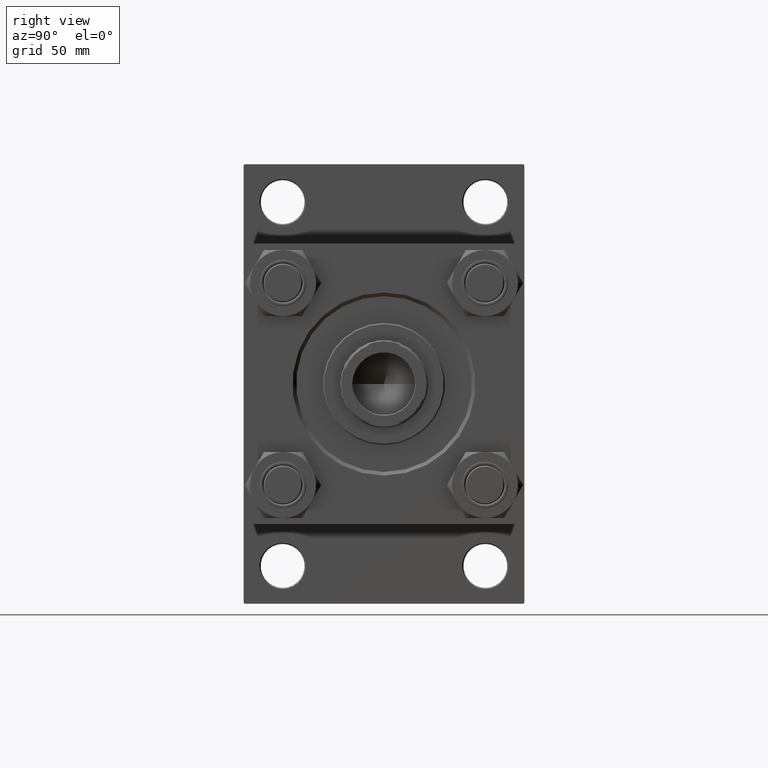
[diagram: clean part render]
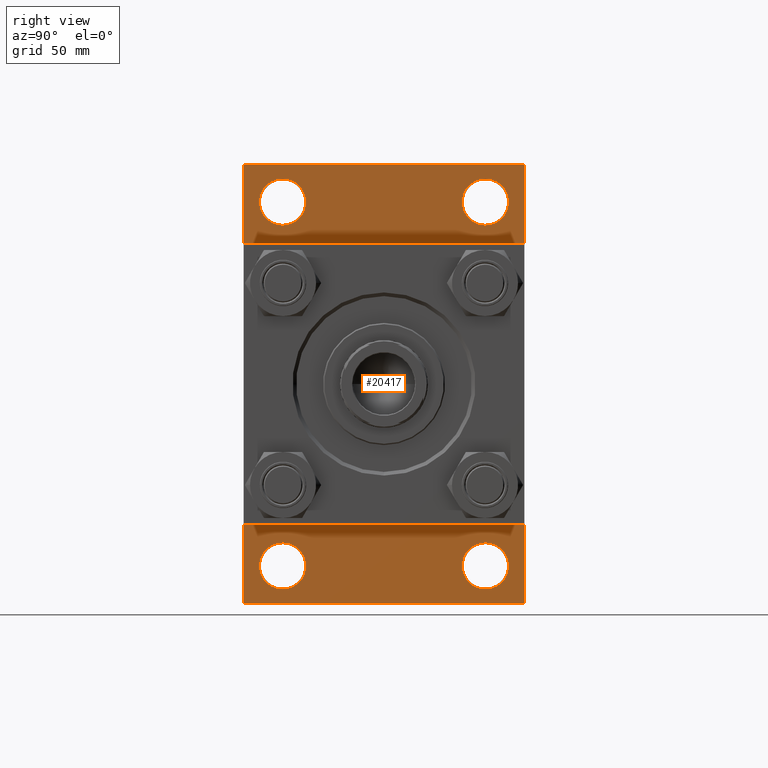
[diagram: same view with one face highlighted and labeled with its STEP entity id]
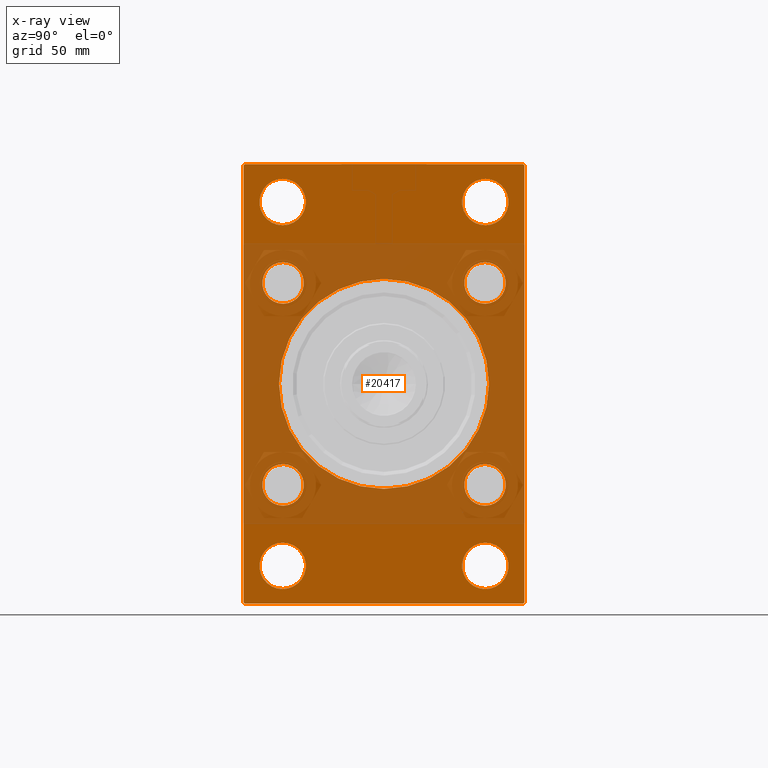
[diagram: x-ray of the same camera — body ghosted, the highlighted face saturated]
A machine part, right view. The second image highlights one B-rep face of the part: STEP entity #20417.
The next image is the same camera in x-ray: the body ghosted, the highlighted face saturated — about 51% of this face is hidden behind the body in this view.
In plain terms, the highlighted planar face has unit normal (-1, 0, 0).
Its self-contained STEP definition (entity closure, byte-faithful):
#83 = CIRCLE ( 'NONE', #36721, 9.500000000000008882 ) ;
#174 = ORIENTED_EDGE ( 'NONE', *, *, #3602, .T. ) ;
#183 = CARTESIAN_POINT ( 'NONE',  ( 44.00000000000000000, -57.00000000000001421, 89.99999999999998579 ) ) ;
#361 = AXIS2_PLACEMENT_3D ( 'NONE', #24158, #39740, #16233 ) ;
#723 = CARTESIAN_POINT ( 'NONE',  ( 44.00000000000000000, 57.50000000000000000, -90.00000000000000000 ) ) ;
#935 = CARTESIAN_POINT ( 'NONE',  ( 44.00000000000000000, 41.34999999999999432, 49.84999999999995879 ) ) ;
#1331 = EDGE_CURVE ( 'NONE', #15025, #9266, #10894, .T. ) ;
#1490 = DIRECTION ( 'NONE',  ( 0.000000000000000000, 0.000000000000000000, 1.000000000000000000 ) ) ;
#2005 = DIRECTION ( 'NONE',  ( -1.000000000000000000, 0.000000000000000000, -0.000000000000000000 ) ) ;
#2396 = ORIENTED_EDGE ( 'NONE', *, *, #35512, .F. ) ;
#2946 = CARTESIAN_POINT ( 'NONE',  ( 44.00000000000000000, 41.34999999999999432, -32.85000000000005116 ) ) ;
#2996 = CARTESIAN_POINT ( 'NONE',  ( 44.00000000000000000, -41.50000000000000000, 84.00000000000000000 ) ) ;
#3316 = ORIENTED_EDGE ( 'NONE', *, *, #7457, .F. ) ;
#3578 = CARTESIAN_POINT ( 'NONE',  ( 44.00000000000000000, -41.34999999999998721, -32.85000000000005826 ) ) ;
#3602 = EDGE_CURVE ( 'NONE', #20884, #4307, #17471, .T. ) ;
#3874 = CARTESIAN_POINT ( 'NONE',  ( 44.00000000000000000, -41.34999999999998721, -41.35000000000000853 ) ) ;
#4213 = VERTEX_POINT ( 'NONE', #38845 ) ;
#4223 = VECTOR ( 'NONE', #29468, 1000.000000000000000 ) ;
#4242 = VERTEX_POINT ( 'NONE', #7696 ) ;
#4307 = VERTEX_POINT ( 'NONE', #35768 ) ;
#4464 = LINE ( 'NONE', #7787, #29344 ) ;
#4678 = AXIS2_PLACEMENT_3D ( 'NONE', #44998, #45507, #38355 ) ;
#5278 = AXIS2_PLACEMENT_3D ( 'NONE', #24527, #36515, #24773 ) ;
#5313 = CARTESIAN_POINT ( 'NONE',  ( 44.00000000000000000, 0.000000000000000000, 0.000000000000000000 ) ) ;
#5639 = DIRECTION ( 'NONE',  ( -1.000000000000000000, 0.000000000000000000, -0.000000000000000000 ) ) ;
#6026 = CARTESIAN_POINT ( 'NONE',  ( 44.00000000000000000, 41.34999999999999432, 32.85000000000005116 ) ) ;
#6219 = ORIENTED_EDGE ( 'NONE', *, *, #16944, .T. ) ;
#6271 = ORIENTED_EDGE ( 'NONE', *, *, #16603, .T. ) ;
#6656 = ORIENTED_EDGE ( 'NONE', *, *, #23729, .T. ) ;
#6974 = EDGE_CURVE ( 'NONE', #22383, #9401, #29722, .T. ) ;
#7278 = DIRECTION ( 'NONE',  ( 0.000000000000000000, 0.7071067811865622277, -0.7071067811865328068 ) ) ;
#7288 = FACE_BOUND ( 'NONE', #42720, .T. ) ;
#7329 = CIRCLE ( 'NONE', #35860, 8.499999999999952038 ) ;
#7457 = EDGE_CURVE ( 'NONE', #34281, #9869, #10116, .T. ) ;
#7696 = CARTESIAN_POINT ( 'NONE',  ( 44.00000000000000000, -57.49999999999999289, 89.50000000000001421 ) ) ;
#7787 = CARTESIAN_POINT ( 'NONE',  ( 44.00000000000000000, 57.50000000000000000, 90.00000000000000000 ) ) ;
#8061 = ORIENTED_EDGE ( 'NONE', *, *, #28287, .T. ) ;
#8130 = CARTESIAN_POINT ( 'NONE',  ( 44.00000000000000000, -41.34999999999998721, 41.35000000000000853 ) ) ;
#8171 = CARTESIAN_POINT ( 'NONE',  ( 44.00000000000000000, -41.50000000000000000, -74.50000000000000000 ) ) ;
#8365 = LINE ( 'NONE', #723, #25428 ) ;
#8833 = EDGE_LOOP ( 'NONE', ( #174, #27465 ) ) ;
#8994 = CARTESIAN_POINT ( 'NONE',  ( 44.00000000000000000, 41.34999999999999432, -49.84999999999995879 ) ) ;
#9088 = VERTEX_POINT ( 'NONE', #935 ) ;
#9195 = DIRECTION ( 'NONE',  ( -1.000000000000000000, 0.000000000000000000, -0.000000000000000000 ) ) ;
#9266 = VERTEX_POINT ( 'NONE', #13947 ) ;
#9401 = VERTEX_POINT ( 'NONE', #2996 ) ;
#9721 = DIRECTION ( 'NONE',  ( 1.000000000000000000, -0.000000000000000000, 0.000000000000000000 ) ) ;
#9805 = ORIENTED_EDGE ( 'NONE', *, *, #49645, .T. ) ;
#9869 = VERTEX_POINT ( 'NONE', #37646 ) ;
#9897 = CARTESIAN_POINT ( 'NONE',  ( 44.00000000000000000, -41.34999999999998721, -41.35000000000000853 ) ) ;
#9928 = ORIENTED_EDGE ( 'NONE', *, *, #26296, .T. ) ;
#10000 = CIRCLE ( 'NONE', #48272, 8.499999999999952038 ) ;
#10116 = CIRCLE ( 'NONE', #361, 43.00000000000000000 ) ;
#10315 = CIRCLE ( 'NONE', #50332, 9.500000000000008882 ) ;
#10492 = VERTEX_POINT ( 'NONE', #38032 ) ;
#10715 = AXIS2_PLACEMENT_3D ( 'NONE', #5313, #44865, #40271 ) ;
#10894 = CIRCLE ( 'NONE', #49166, 8.499999999999952038 ) ;
#11354 = FACE_BOUND ( 'NONE', #38168, .T. ) ;
#11431 = VECTOR ( 'NONE', #19626, 1000.000000000000114 ) ;
#11860 = DIRECTION ( 'NONE',  ( 0.000000000000000000, -1.000000000000000000, -1.206764157201257291E-16 ) ) ;
#11875 = EDGE_CURVE ( 'NONE', #21255, #35773, #42254, .T. ) ;
#12930 = EDGE_CURVE ( 'NONE', #13888, #45366, #46163, .T. ) ;
#12935 = DIRECTION ( 'NONE',  ( -1.000000000000000000, 0.000000000000000000, -0.000000000000000000 ) ) ;
#13521 = ORIENTED_EDGE ( 'NONE', *, *, #30222, .T. ) ;
#13761 = VERTEX_POINT ( 'NONE', #40707 ) ;
#13888 = VERTEX_POINT ( 'NONE', #2946 ) ;
#13947 = CARTESIAN_POINT ( 'NONE',  ( 44.00000000000000000, -41.34999999999998721, -49.84999999999996589 ) ) ;
#13953 = EDGE_LOOP ( 'NONE', ( #9805, #31188 ) ) ;
#14176 = ORIENTED_EDGE ( 'NONE', *, *, #30739, .T. ) ;
#14195 = AXIS2_PLACEMENT_3D ( 'NONE', #8171, #23503, #39827 ) ;
#14232 = ORIENTED_EDGE ( 'NONE', *, *, #19171, .T. ) ;
#15025 = VERTEX_POINT ( 'NONE', #3578 ) ;
#15771 = ORIENTED_EDGE ( 'NONE', *, *, #25644, .F. ) ;
#15774 = CARTESIAN_POINT ( 'NONE',  ( 44.00000000000000000, 57.50000000000000000, -89.50000000000000000 ) ) ;
#15861 = DIRECTION ( 'NONE',  ( -1.000000000000000000, 0.000000000000000000, -0.000000000000000000 ) ) ;
#16233 = DIRECTION ( 'NONE',  ( 0.000000000000000000, 0.000000000000000000, 1.000000000000000000 ) ) ;
#16603 = EDGE_CURVE ( 'NONE', #24791, #38673, #4464, .T. ) ;
#16712 = LINE ( 'NONE', #17213, #23986 ) ;
#16788 = AXIS2_PLACEMENT_3D ( 'NONE', #32215, #9721, #37306 ) ;
#16850 = AXIS2_PLACEMENT_3D ( 'NONE', #46589, #23621, #43029 ) ;
#16944 = EDGE_CURVE ( 'NONE', #45366, #13888, #7329, .T. ) ;
#17213 = CARTESIAN_POINT ( 'NONE',  ( 44.00000000000000000, 57.50000000000000000, 90.00000000000000000 ) ) ;
#17386 = DIRECTION ( 'NONE',  ( -1.000000000000000000, 0.000000000000000000, -0.000000000000000000 ) ) ;
#17471 = CIRCLE ( 'NONE', #14195, 9.500000000000008882 ) ;
#17788 = ORIENTED_EDGE ( 'NONE', *, *, #18541, .T. ) ;
#18289 = VERTEX_POINT ( 'NONE', #48723 ) ;
#18541 = EDGE_CURVE ( 'NONE', #13761, #18999, #83, .T. ) ;
#18725 = CARTESIAN_POINT ( 'NONE',  ( 44.00000000000000000, 57.00000000000000000, -90.00000000000000000 ) ) ;
#18750 = CARTESIAN_POINT ( 'NONE',  ( 44.00000000000000000, -56.99999999999998579, -90.00000000000002842 ) ) ;
#18759 = FACE_BOUND ( 'NONE', #13953, .T. ) ;
#18999 = VERTEX_POINT ( 'NONE', #47795 ) ;
#19012 = FACE_BOUND ( 'NONE', #43036, .T. ) ;
#19171 = EDGE_CURVE ( 'NONE', #18289, #4213, #22879, .T. ) ;
#19333 = CARTESIAN_POINT ( 'NONE',  ( 44.00000000000000000, -41.50000000000000000, 64.99999999999998579 ) ) ;
#19465 = DIRECTION ( 'NONE',  ( 0.000000000000000000, 0.000000000000000000, 1.000000000000000000 ) ) ;
#19626 = DIRECTION ( 'NONE',  ( -0.000000000000000000, 0.7071067811865474617, 0.7071067811865474617 ) ) ;
#19664 = AXIS2_PLACEMENT_3D ( 'NONE', #29929, #17386, #22245 ) ;
#19958 = CARTESIAN_POINT ( 'NONE',  ( 44.00000000000000000, 41.34999999999999432, -41.35000000000000142 ) ) ;
#20417 = ADVANCED_FACE ( 'NONE', ( #18759, #7288, #30526, #19012, #34603, #26936, #46329, #11354, #24699, #48411 ), #36447, .F. ) ;
#20549 = EDGE_LOOP ( 'NONE', ( #6219, #47866 ) ) ;
#20884 = VERTEX_POINT ( 'NONE', #30700 ) ;
#21123 = ORIENTED_EDGE ( 'NONE', *, *, #35793, .T. ) ;
#21203 = EDGE_CURVE ( 'NONE', #46381, #34405, #43362, .T. ) ;
#21255 = VERTEX_POINT ( 'NONE', #39540 ) ;
#21444 = CARTESIAN_POINT ( 'NONE',  ( 44.00000000000000000, 41.50000000000000711, 74.50000000000000000 ) ) ;
#21641 = ORIENTED_EDGE ( 'NONE', *, *, #6974, .T. ) ;
#22122 = CIRCLE ( 'NONE', #19664, 9.500000000000008882 ) ;
#22217 = CARTESIAN_POINT ( 'NONE',  ( 44.00000000000000000, -41.50000000000000000, 74.50000000000000000 ) ) ;
#22245 = DIRECTION ( 'NONE',  ( 0.000000000000000000, 0.000000000000000000, 1.000000000000000000 ) ) ;
#22383 = VERTEX_POINT ( 'NONE', #19333 ) ;
#22729 = DIRECTION ( 'NONE',  ( 0.000000000000000000, 0.000000000000000000, 1.000000000000000000 ) ) ;
#22879 = CIRCLE ( 'NONE', #42464, 8.499999999999952038 ) ;
#23114 = AXIS2_PLACEMENT_3D ( 'NONE', #45203, #37560, #26574 ) ;
#23503 = DIRECTION ( 'NONE',  ( -1.000000000000000000, 0.000000000000000000, -0.000000000000000000 ) ) ;
#23510 = DIRECTION ( 'NONE',  ( 0.000000000000000000, 0.000000000000000000, 1.000000000000000000 ) ) ;
#23621 = DIRECTION ( 'NONE',  ( -1.000000000000000000, 0.000000000000000000, -0.000000000000000000 ) ) ;
#23705 = DIRECTION ( 'NONE',  ( -1.000000000000000000, 0.000000000000000000, -0.000000000000000000 ) ) ;
#23729 = EDGE_CURVE ( 'NONE', #4242, #21255, #50269, .T. ) ;
#23771 = DIRECTION ( 'NONE',  ( -1.000000000000000000, 0.000000000000000000, -0.000000000000000000 ) ) ;
#23986 = VECTOR ( 'NONE', #32300, 1000.000000000000000 ) ;
#24078 = EDGE_LOOP ( 'NONE', ( #8061, #44605 ) ) ;
#24158 = CARTESIAN_POINT ( 'NONE',  ( 44.00000000000000000, -2.602085213965210642E-15, 0.000000000000000000 ) ) ;
#24253 = EDGE_CURVE ( 'NONE', #4307, #20884, #22122, .T. ) ;
#24322 = ORIENTED_EDGE ( 'NONE', *, *, #34675, .T. ) ;
#24527 = CARTESIAN_POINT ( 'NONE',  ( 44.00000000000000000, 41.34999999999999432, 41.35000000000000142 ) ) ;
#24692 = CARTESIAN_POINT ( 'NONE',  ( 44.00000000000000000, 41.50000000000000711, -74.50000000000000000 ) ) ;
#24699 = FACE_BOUND ( 'NONE', #24795, .T. ) ;
#24773 = DIRECTION ( 'NONE',  ( 0.000000000000000000, 0.000000000000000000, 1.000000000000000000 ) ) ;
#24791 = VERTEX_POINT ( 'NONE', #47900 ) ;
#24795 = EDGE_LOOP ( 'NONE', ( #3316, #43359 ) ) ;
#25428 = VECTOR ( 'NONE', #32360, 1000.000000000000000 ) ;
#25440 = DIRECTION ( 'NONE',  ( 0.000000000000000000, 0.000000000000000000, 1.000000000000000000 ) ) ;
#25633 = CIRCLE ( 'NONE', #32155, 8.499999999999952038 ) ;
#25644 = EDGE_CURVE ( 'NONE', #46381, #35773, #8365, .T. ) ;
#25713 = AXIS2_PLACEMENT_3D ( 'NONE', #36673, #12935, #25440 ) ;
#26134 = CARTESIAN_POINT ( 'NONE',  ( 44.00000000000000000, -57.49999999999999289, 89.50000000000001421 ) ) ;
#26296 = EDGE_CURVE ( 'NONE', #38673, #4242, #33300, .T. ) ;
#26434 = AXIS2_PLACEMENT_3D ( 'NONE', #22217, #30393, #22729 ) ;
#26574 = DIRECTION ( 'NONE',  ( 0.000000000000000000, 0.000000000000000000, 1.000000000000000000 ) ) ;
#26696 = CIRCLE ( 'NONE', #4678, 9.500000000000008882 ) ;
#26936 = FACE_BOUND ( 'NONE', #20549, .T. ) ;
#27016 = CARTESIAN_POINT ( 'NONE',  ( 44.00000000000000000, 41.50000000000000711, 64.99999999999998579 ) ) ;
#27465 = ORIENTED_EDGE ( 'NONE', *, *, #24253, .T. ) ;
#28287 = EDGE_CURVE ( 'NONE', #9266, #15025, #10000, .T. ) ;
#28619 = CARTESIAN_POINT ( 'NONE',  ( 44.00000000000000000, -41.34999999999998721, 41.35000000000000853 ) ) ;
#28959 = LINE ( 'NONE', #44522, #49996 ) ;
#29344 = VECTOR ( 'NONE', #11860, 1000.000000000000000 ) ;
#29468 = DIRECTION ( 'NONE',  ( -0.000000000000000000, -0.7071067811865524577, -0.7071067811865426878 ) ) ;
#29722 = CIRCLE ( 'NONE', #26434, 9.500000000000008882 ) ;
#29929 = CARTESIAN_POINT ( 'NONE',  ( 44.00000000000000000, -41.50000000000000000, -74.50000000000000000 ) ) ;
#30222 = EDGE_CURVE ( 'NONE', #18999, #13761, #37823, .T. ) ;
#30393 = DIRECTION ( 'NONE',  ( -1.000000000000000000, 0.000000000000000000, -0.000000000000000000 ) ) ;
#30526 = FACE_BOUND ( 'NONE', #8833, .T. ) ;
#30700 = CARTESIAN_POINT ( 'NONE',  ( 44.00000000000000000, -41.50000000000000000, -84.00000000000000000 ) ) ;
#30739 = EDGE_CURVE ( 'NONE', #31772, #24791, #28959, .T. ) ;
#31126 = ORIENTED_EDGE ( 'NONE', *, *, #21203, .T. ) ;
#31173 = DIRECTION ( 'NONE',  ( -1.000000000000000000, 0.000000000000000000, -0.000000000000000000 ) ) ;
#31188 = ORIENTED_EDGE ( 'NONE', *, *, #47652, .T. ) ;
#31772 = VERTEX_POINT ( 'NONE', #38066 ) ;
#31860 = DIRECTION ( 'NONE',  ( -1.000000000000000000, 0.000000000000000000, -0.000000000000000000 ) ) ;
#32155 = AXIS2_PLACEMENT_3D ( 'NONE', #28619, #9195, #43936 ) ;
#32215 = CARTESIAN_POINT ( 'NONE',  ( 44.00000000000000000, -2.602085213965210642E-15, 0.000000000000000000 ) ) ;
#32300 = DIRECTION ( 'NONE',  ( 0.000000000000000000, 0.000000000000000000, -1.000000000000000000 ) ) ;
#32360 = DIRECTION ( 'NONE',  ( 0.000000000000000000, -1.000000000000000000, -2.413528314402514583E-16 ) ) ;
#32569 = ORIENTED_EDGE ( 'NONE', *, *, #11875, .T. ) ;
#33103 = CIRCLE ( 'NONE', #16788, 43.00000000000000000 ) ;
#33300 = LINE ( 'NONE', #26134, #4223 ) ;
#33898 = CIRCLE ( 'NONE', #25713, 8.499999999999952038 ) ;
#34281 = VERTEX_POINT ( 'NONE', #36242 ) ;
#34405 = VERTEX_POINT ( 'NONE', #48714 ) ;
#34603 = FACE_BOUND ( 'NONE', #24078, .T. ) ;
#34675 = EDGE_CURVE ( 'NONE', #9088, #40968, #33898, .T. ) ;
#35512 = EDGE_CURVE ( 'NONE', #31772, #34405, #16712, .T. ) ;
#35768 = CARTESIAN_POINT ( 'NONE',  ( 44.00000000000000000, -41.50000000000000000, -64.99999999999998579 ) ) ;
#35773 = VERTEX_POINT ( 'NONE', #39103 ) ;
#35793 = EDGE_CURVE ( 'NONE', #9401, #22383, #40314, .T. ) ;
#35860 = AXIS2_PLACEMENT_3D ( 'NONE', #19958, #15861, #19465 ) ;
#35972 = EDGE_CURVE ( 'NONE', #4213, #18289, #25633, .T. ) ;
#36063 = EDGE_CURVE ( 'NONE', #40968, #9088, #43678, .T. ) ;
#36079 = ORIENTED_EDGE ( 'NONE', *, *, #36063, .T. ) ;
#36242 = CARTESIAN_POINT ( 'NONE',  ( 44.00000000000000000, -2.602085213965210642E-15, 43.00000000000000000 ) ) ;
#36447 = PLANE ( 'NONE',  #10715 ) ;
#36515 = DIRECTION ( 'NONE',  ( -1.000000000000000000, 0.000000000000000000, -0.000000000000000000 ) ) ;
#36673 = CARTESIAN_POINT ( 'NONE',  ( 44.00000000000000000, 41.34999999999999432, 41.35000000000000142 ) ) ;
#36721 = AXIS2_PLACEMENT_3D ( 'NONE', #24692, #31860, #1490 ) ;
#36806 = ORIENTED_EDGE ( 'NONE', *, *, #35972, .T. ) ;
#37306 = DIRECTION ( 'NONE',  ( 0.000000000000000000, 0.000000000000000000, 1.000000000000000000 ) ) ;
#37560 = DIRECTION ( 'NONE',  ( -1.000000000000000000, 0.000000000000000000, -0.000000000000000000 ) ) ;
#37646 = CARTESIAN_POINT ( 'NONE',  ( 44.00000000000000000, 2.663896022368408223E-15, -43.00000000000000000 ) ) ;
#37823 = CIRCLE ( 'NONE', #23114, 9.500000000000008882 ) ;
#38032 = CARTESIAN_POINT ( 'NONE',  ( 44.00000000000000000, 41.50000000000000711, 84.00000000000000000 ) ) ;
#38066 = CARTESIAN_POINT ( 'NONE',  ( 44.00000000000000000, 57.50000000000000000, 89.49999999999997158 ) ) ;
#38168 = EDGE_LOOP ( 'NONE', ( #36079, #24322 ) ) ;
#38355 = DIRECTION ( 'NONE',  ( 0.000000000000000000, 0.000000000000000000, 1.000000000000000000 ) ) ;
#38402 = VECTOR ( 'NONE', #42153, 1000.000000000000000 ) ;
#38673 = VERTEX_POINT ( 'NONE', #183 ) ;
#38845 = CARTESIAN_POINT ( 'NONE',  ( 44.00000000000000000, -41.34999999999998721, 49.84999999999996589 ) ) ;
#39055 = EDGE_LOOP ( 'NONE', ( #15771, #31126, #2396, #14176, #6271, #9928, #6656, #32569 ) ) ;
#39103 = CARTESIAN_POINT ( 'NONE',  ( 44.00000000000000000, -56.99999999999998579, -90.00000000000002842 ) ) ;
#39282 = DIRECTION ( 'NONE',  ( 0.000000000000000000, 0.000000000000000000, 1.000000000000000000 ) ) ;
#39540 = CARTESIAN_POINT ( 'NONE',  ( 44.00000000000000000, -57.49999999999999289, -89.49999999999998579 ) ) ;
#39600 = DIRECTION ( 'NONE',  ( 0.000000000000000000, 0.000000000000000000, 1.000000000000000000 ) ) ;
#39740 = DIRECTION ( 'NONE',  ( 1.000000000000000000, -0.000000000000000000, 0.000000000000000000 ) ) ;
#39827 = DIRECTION ( 'NONE',  ( 0.000000000000000000, 0.000000000000000000, 1.000000000000000000 ) ) ;
#39856 = DIRECTION ( 'NONE',  ( 0.000000000000000000, 0.000000000000000000, 1.000000000000000000 ) ) ;
#40271 = DIRECTION ( 'NONE',  ( -0.000000000000000000, 0.000000000000000000, 1.000000000000000000 ) ) ;
#40314 = CIRCLE ( 'NONE', #41129, 9.500000000000008882 ) ;
#40707 = CARTESIAN_POINT ( 'NONE',  ( 44.00000000000000000, 41.50000000000000711, -64.99999999999998579 ) ) ;
#40968 = VERTEX_POINT ( 'NONE', #6026 ) ;
#41129 = AXIS2_PLACEMENT_3D ( 'NONE', #43180, #23771, #39600 ) ;
#42153 = DIRECTION ( 'NONE',  ( 0.000000000000000000, 0.000000000000000000, -1.000000000000000000 ) ) ;
#42254 = LINE ( 'NONE', #18750, #46205 ) ;
#42464 = AXIS2_PLACEMENT_3D ( 'NONE', #8130, #23705, #39282 ) ;
#42571 = EDGE_LOOP ( 'NONE', ( #14232, #36806 ) ) ;
#42720 = EDGE_LOOP ( 'NONE', ( #21641, #21123 ) ) ;
#43029 = DIRECTION ( 'NONE',  ( 0.000000000000000000, 0.000000000000000000, 1.000000000000000000 ) ) ;
#43036 = EDGE_LOOP ( 'NONE', ( #13521, #17788 ) ) ;
#43180 = CARTESIAN_POINT ( 'NONE',  ( 44.00000000000000000, -41.50000000000000000, 74.50000000000000000 ) ) ;
#43359 = ORIENTED_EDGE ( 'NONE', *, *, #43563, .F. ) ;
#43362 = LINE ( 'NONE', #15774, #11431 ) ;
#43563 = EDGE_CURVE ( 'NONE', #9869, #34281, #33103, .T. ) ;
#43678 = CIRCLE ( 'NONE', #5278, 8.499999999999952038 ) ;
#43936 = DIRECTION ( 'NONE',  ( 0.000000000000000000, 0.000000000000000000, 1.000000000000000000 ) ) ;
#44372 = DIRECTION ( 'NONE',  ( 0.000000000000000000, 0.000000000000000000, 1.000000000000000000 ) ) ;
#44522 = CARTESIAN_POINT ( 'NONE',  ( 44.00000000000000000, 57.00000000000000000, 90.00000000000000000 ) ) ;
#44605 = ORIENTED_EDGE ( 'NONE', *, *, #1331, .T. ) ;
#44865 = DIRECTION ( 'NONE',  ( -1.000000000000000000, 0.000000000000000000, -0.000000000000000000 ) ) ;
#44998 = CARTESIAN_POINT ( 'NONE',  ( 44.00000000000000000, 41.50000000000000711, 74.50000000000000000 ) ) ;
#45011 = VERTEX_POINT ( 'NONE', #27016 ) ;
#45203 = CARTESIAN_POINT ( 'NONE',  ( 44.00000000000000000, 41.50000000000000711, -74.50000000000000000 ) ) ;
#45366 = VERTEX_POINT ( 'NONE', #8994 ) ;
#45507 = DIRECTION ( 'NONE',  ( -1.000000000000000000, 0.000000000000000000, -0.000000000000000000 ) ) ;
#45713 = CARTESIAN_POINT ( 'NONE',  ( 44.00000000000000000, -57.49999999999999289, 89.99999999999998579 ) ) ;
#46163 = CIRCLE ( 'NONE', #16850, 8.499999999999952038 ) ;
#46205 = VECTOR ( 'NONE', #7278, 1000.000000000000000 ) ;
#46329 = FACE_BOUND ( 'NONE', #42571, .T. ) ;
#46381 = VERTEX_POINT ( 'NONE', #18725 ) ;
#46520 = DIRECTION ( 'NONE',  ( 0.000000000000000000, -0.7071067811865279218, 0.7071067811865672237 ) ) ;
#46589 = CARTESIAN_POINT ( 'NONE',  ( 44.00000000000000000, 41.34999999999999432, -41.35000000000000142 ) ) ;
#47652 = EDGE_CURVE ( 'NONE', #10492, #45011, #10315, .T. ) ;
#47795 = CARTESIAN_POINT ( 'NONE',  ( 44.00000000000000000, 41.50000000000000711, -84.00000000000000000 ) ) ;
#47866 = ORIENTED_EDGE ( 'NONE', *, *, #12930, .T. ) ;
#47900 = CARTESIAN_POINT ( 'NONE',  ( 44.00000000000000000, 57.00000000000000000, 90.00000000000000000 ) ) ;
#48272 = AXIS2_PLACEMENT_3D ( 'NONE', #9897, #2005, #44372 ) ;
#48411 = FACE_OUTER_BOUND ( 'NONE', #39055, .T. ) ;
#48714 = CARTESIAN_POINT ( 'NONE',  ( 44.00000000000000000, 57.50000000000000000, -89.49999999999994316 ) ) ;
#48723 = CARTESIAN_POINT ( 'NONE',  ( 44.00000000000000000, -41.34999999999998721, 32.85000000000005826 ) ) ;
#49166 = AXIS2_PLACEMENT_3D ( 'NONE', #3874, #31173, #23510 ) ;
#49645 = EDGE_CURVE ( 'NONE', #45011, #10492, #26696, .T. ) ;
#49996 = VECTOR ( 'NONE', #46520, 1000.000000000000000 ) ;
#50269 = LINE ( 'NONE', #45713, #38402 ) ;
#50332 = AXIS2_PLACEMENT_3D ( 'NONE', #21444, #5639, #39856 ) ;